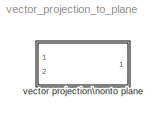
MODEL vector_projection_to_plane
KIND model
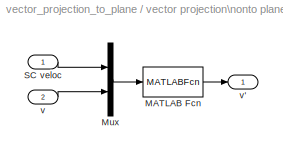
BLOCK [SubSystem] vector projection\nonto plane
  MinAlgLoopOccurrences = off
  Ports = [2, 1]
  RTWSystemCode = Auto
  TreatAsAtomicUnit = off
BLOCK [MATLABFcn] vector projection\nonto plane/MATLAB Fcn
  MATLABFcn = vector_projection_onto_plane(u)
BLOCK [Mux] vector projection\nonto plane/Mux
  DisplayOption = bar
  Inputs = 2
  Ports = [2, 1]
BLOCK [Inport] vector projection\nonto plane/SC veloc
  IconDisplay = Port number
  LatchInput = off
  Port = 1
BLOCK [Inport] vector projection\nonto plane/v
  IconDisplay = Port number
  LatchInput = off
  Port = 2
BLOCK [Outport] vector projection\nonto plane/v'
  BusOutputAsStruct = off
  IconDisplay = Port number
LINE vector projection\nonto plane/MATLAB Fcn:1 -> vector projection\nonto plane/v':1
LINE vector projection\nonto plane/Mux:1 -> vector projection\nonto plane/MATLAB Fcn:1
LINE vector projection\nonto plane/SC veloc:1 -> vector projection\nonto plane/Mux:1
LINE vector projection\nonto plane/v:1 -> vector projection\nonto plane/Mux:2
